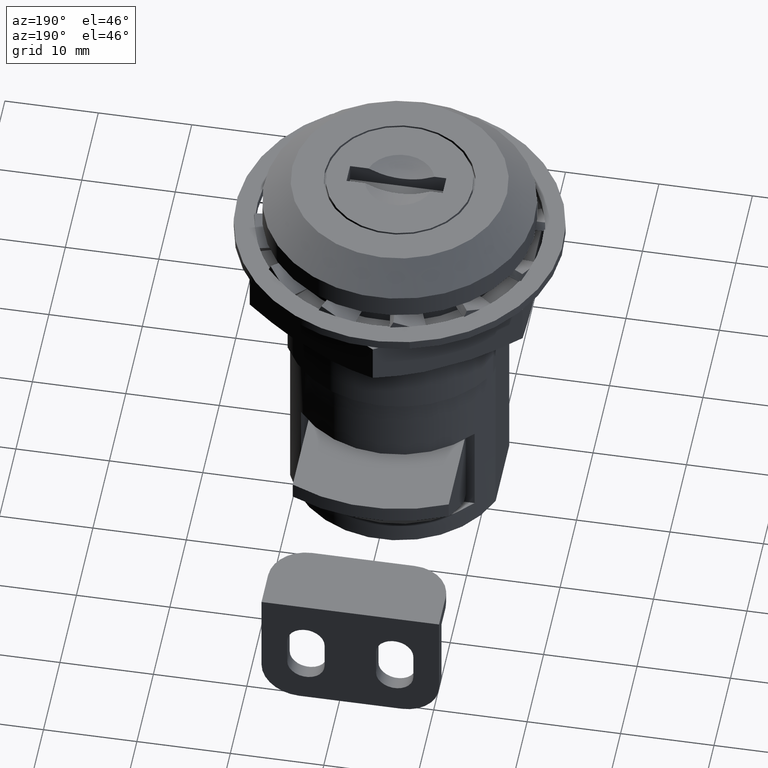
[diagram: clean part render]
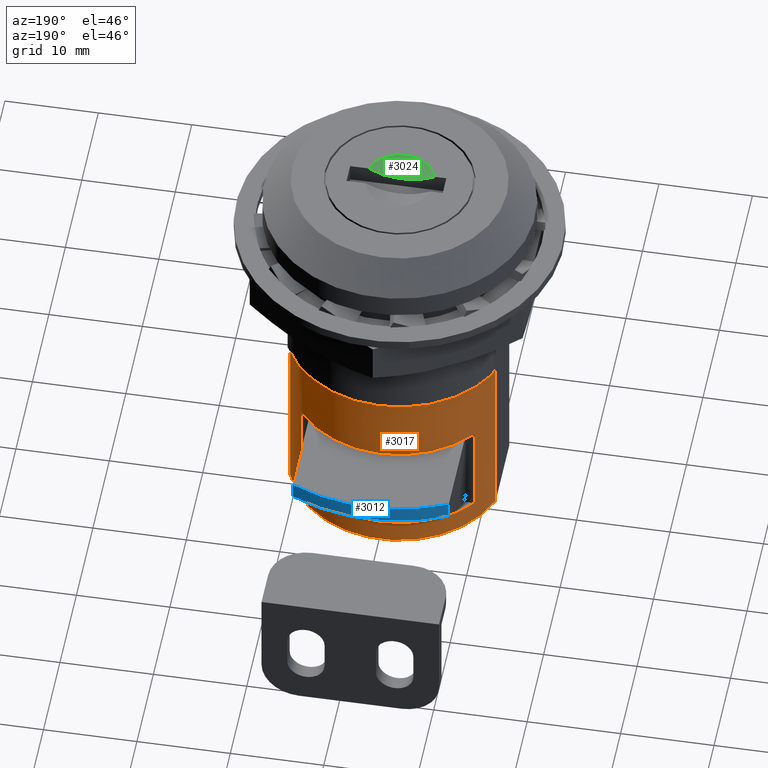
[diagram: same view with three faces highlighted in distinct colors, each labeled with its STEP entity id]
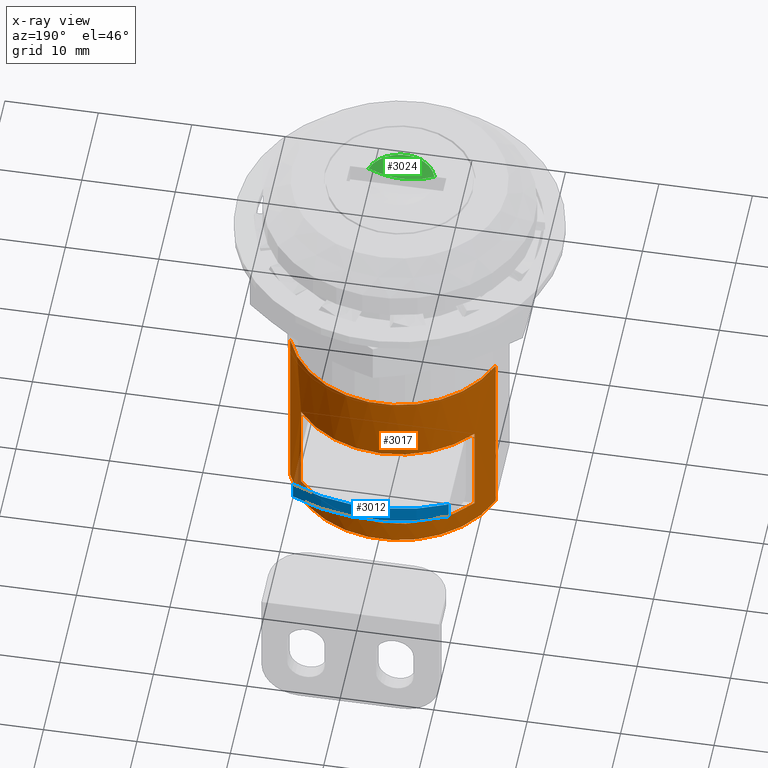
[diagram: x-ray of the same camera — body ghosted, the three highlighted faces saturated]
A machine part, auxiliary view with three faces highlighted in distinct colors.
The next image is the same camera in x-ray (body ghosted, the three faces saturated) — at least one of them is partly hidden behind the body in this view.
Their STEP definitions:

[orange] entity #3017 — the highlighted cylindrical surface (partial cylindrical patch) has radius 11.75 mm, axis along (0, 0, -1).
#169=FACE_BOUND('',#430,.T.);
#191=CYLINDRICAL_SURFACE('',#3196,11.75);
#259=FACE_OUTER_BOUND('',#429,.T.);
#429=EDGE_LOOP('',(#2061,#2062,#2063,#2064));
#430=EDGE_LOOP('',(#2065,#2066,#2067,#2068));
#613=CIRCLE('',#3193,11.75);
#614=CIRCLE('',#3195,11.75);
#615=CIRCLE('',#3197,11.75);
#616=CIRCLE('',#3198,11.75);
#696=LINE('',#4126,#984);
#698=LINE('',#4130,#986);
#700=LINE('',#4139,#988);
#701=LINE('',#4143,#989);
#984=VECTOR('',#3419,10.5);
#986=VECTOR('',#3421,10.5);
#988=VECTOR('',#3433,20.5);
#989=VECTOR('',#3436,20.5);
#1272=VERTEX_POINT('',#4124);
#1273=VERTEX_POINT('',#4125);
#1274=VERTEX_POINT('',#4127);
#1275=VERTEX_POINT('',#4129);
#1276=VERTEX_POINT('',#4137);
#1277=VERTEX_POINT('',#4138);
#1278=VERTEX_POINT('',#4140);
#1279=VERTEX_POINT('',#4142);
#1584=EDGE_CURVE('',#1272,#1273,#696,.T.);
#1586=EDGE_CURVE('',#1275,#1274,#698,.T.);
#1588=EDGE_CURVE('',#1273,#1275,#613,.T.);
#1589=EDGE_CURVE('',#1274,#1272,#614,.T.);
#1590=EDGE_CURVE('',#1276,#1277,#700,.T.);
#1591=EDGE_CURVE('',#1277,#1278,#615,.T.);
#1592=EDGE_CURVE('',#1278,#1279,#701,.T.);
#1593=EDGE_CURVE('',#1276,#1279,#616,.T.);
#2061=ORIENTED_EDGE('',*,*,#1590,.T.);
#2062=ORIENTED_EDGE('',*,*,#1591,.T.);
#2063=ORIENTED_EDGE('',*,*,#1592,.T.);
#2064=ORIENTED_EDGE('',*,*,#1593,.F.);
#2065=ORIENTED_EDGE('',*,*,#1588,.T.);
#2066=ORIENTED_EDGE('',*,*,#1586,.T.);
#2067=ORIENTED_EDGE('',*,*,#1589,.T.);
#2068=ORIENTED_EDGE('',*,*,#1584,.T.);
#3017=ADVANCED_FACE('',(#259,#169),#191,.T.);
#3193=AXIS2_PLACEMENT_3D('',#4133,#3425,#3426);
#3195=AXIS2_PLACEMENT_3D('',#4135,#3429,#3430);
#3196=AXIS2_PLACEMENT_3D('',#4136,#3431,#3432);
#3197=AXIS2_PLACEMENT_3D('',#4141,#3434,#3435);
#3198=AXIS2_PLACEMENT_3D('',#4144,#3437,#3438);
#3419=DIRECTION('',(0.,1.17553026136781E-16,-1.));
#3421=DIRECTION('',(0.,-1.17553026136781E-16,1.));
#3425=DIRECTION('center_axis',(0.,4.88010120714355E-16,-1.));
#3426=DIRECTION('ref_axis',(0.,1.,4.88010120714355E-16));
#3429=DIRECTION('center_axis',(0.,4.88010120714355E-16,1.));
#3430=DIRECTION('ref_axis',(0.,1.,-4.88010120714355E-16));
#3431=DIRECTION('center_axis',(0.,1.17553026136781E-16,-1.));
#3432=DIRECTION('ref_axis',(0.,1.,1.17553026136781E-16));
#3433=DIRECTION('',(0.,-1.17553026136781E-16,1.));
#3434=DIRECTION('center_axis',(0.,1.17553026136781E-16,-1.));
#3435=DIRECTION('ref_axis',(1.,0.,0.));
#3436=DIRECTION('',(0.,1.17553026136781E-16,-1.));
#3437=DIRECTION('center_axis',(0.,1.17553026136781E-16,-1.));
#3438=DIRECTION('ref_axis',(1.,0.,0.));
#4124=CARTESIAN_POINT('',(-9.285607142239,7.20000000000001,-29.5));
#4125=CARTESIAN_POINT('',(-9.285607142239,7.20000000000001,-40.));
#4126=CARTESIAN_POINT('',(-9.285607142239,7.20000000000001,-32.25));
#4127=CARTESIAN_POINT('',(9.285607142239,7.20000000000001,-29.5));
#4129=CARTESIAN_POINT('',(9.285607142239,7.20000000000001,-40.));
#4130=CARTESIAN_POINT('',(9.285607142239,7.20000000000001,-32.25));
#4133=CARTESIAN_POINT('Origin',(0.,4.70212104547125E-15,-40.));
#4135=CARTESIAN_POINT('Origin',(0.,3.46781427103505E-15,-29.5));
#4136=CARTESIAN_POINT('Origin',(0.,3.7910850929112E-15,-32.25));
#4137=CARTESIAN_POINT('',(-11.,4.13067791046459,-42.5));
#4138=CARTESIAN_POINT('',(-11.,4.13067791046458,-22.));
#4139=CARTESIAN_POINT('',(-11.,4.13067791046459,-32.25));
#4140=CARTESIAN_POINT('',(11.,4.13067791046458,-22.));
#4141=CARTESIAN_POINT('Origin',(0.,2.58616657500919E-15,-22.));
#4142=CARTESIAN_POINT('',(11.,4.13067791046459,-42.5));
#4143=CARTESIAN_POINT('',(11.,4.13067791046459,-32.25));
#4144=CARTESIAN_POINT('Origin',(0.,4.9960036108132E-15,-42.5));

[blue] entity #3012 — the highlighted cylindrical surface (partial cylindrical patch) has radius 19.45 mm, axis along (0, 0, -1).
#190=CYLINDRICAL_SURFACE('',#3189,19.45);
#254=FACE_OUTER_BOUND('',#423,.T.);
#423=EDGE_LOOP('',(#2041,#2042,#2043,#2044));
#610=CIRCLE('',#3183,19.45);
#611=CIRCLE('',#3187,19.45);
#691=LINE('',#4106,#979);
#693=LINE('',#4111,#981);
#979=VECTOR('',#3400,1.8);
#981=VECTOR('',#3404,1.8);
#1264=VERTEX_POINT('',#4092);
#1265=VERTEX_POINT('',#4094);
#1268=VERTEX_POINT('',#4102);
#1270=VERTEX_POINT('',#4110);
#1571=EDGE_CURVE('',#1265,#1264,#610,.T.);
#1576=EDGE_CURVE('',#1264,#1268,#691,.T.);
#1578=EDGE_CURVE('',#1270,#1265,#693,.T.);
#1581=EDGE_CURVE('',#1270,#1268,#611,.T.);
#2041=ORIENTED_EDGE('',*,*,#1578,.T.);
#2042=ORIENTED_EDGE('',*,*,#1571,.T.);
#2043=ORIENTED_EDGE('',*,*,#1576,.T.);
#2044=ORIENTED_EDGE('',*,*,#1581,.F.);
#3012=ADVANCED_FACE('',(#254),#190,.T.);
#3183=AXIS2_PLACEMENT_3D('',#4095,#3393,#3394);
#3187=AXIS2_PLACEMENT_3D('',#4118,#3408,#3409);
#3189=AXIS2_PLACEMENT_3D('',#4120,#3412,#3413);
#3393=DIRECTION('center_axis',(0.,0.,-1.));
#3394=DIRECTION('ref_axis',(-1.,-3.3620635552916E-16,0.));
#3400=DIRECTION('',(0.,0.,-1.));
#3404=DIRECTION('',(0.,0.,1.));
#3408=DIRECTION('center_axis',(0.,0.,-1.));
#3409=DIRECTION('ref_axis',(-1.,-3.3620635552916E-16,0.));
#3412=DIRECTION('center_axis',(0.,0.,-1.));
#3413=DIRECTION('ref_axis',(-1.,-2.22044604925031E-16,0.));
#4092=CARTESIAN_POINT('',(8.35,17.5664452863976,-29.8));
#4094=CARTESIAN_POINT('',(-8.35,17.5664452863976,-29.8));
#4095=CARTESIAN_POINT('Origin',(5.02596333102258E-17,2.22044604925031E-15,
-29.8));
#4102=CARTESIAN_POINT('',(8.35,17.5664452863976,-31.6));
#4106=CARTESIAN_POINT('',(8.35,17.5664452863976,-30.7));
#4110=CARTESIAN_POINT('',(-8.35,17.5664452863976,-31.6));
#4111=CARTESIAN_POINT('',(-8.35,17.5664452863976,-30.7));
#4118=CARTESIAN_POINT('Origin',(5.02596333102258E-17,2.22044604925031E-15,
-31.6));
#4120=CARTESIAN_POINT('Origin',(0.,0.,-30.7));

[green] entity #3024 — the highlighted spherical surface has radius 7.345 mm.
#166=SPHERICAL_SURFACE('',#3210,7.345);
#266=FACE_OUTER_BOUND('',#438,.T.);
#438=EDGE_LOOP('',(#2102,#2103));
#622=CIRCLE('',#3211,7.26216393370461);
#623=CIRCLE('',#3212,3.7);
#1293=VERTEX_POINT('',#4192);
#1294=VERTEX_POINT('',#4193);
#1613=EDGE_CURVE('',#1293,#1294,#622,.T.);
#1614=EDGE_CURVE('',#1294,#1293,#623,.T.);
#2102=ORIENTED_EDGE('',*,*,#1613,.F.);
#2103=ORIENTED_EDGE('',*,*,#1614,.F.);
#3024=ADVANCED_FACE('',(#266),#166,.F.);
#3210=AXIS2_PLACEMENT_3D('',#4191,#3471,#3472);
#3211=AXIS2_PLACEMENT_3D('',#4194,#3473,#3474);
#3212=AXIS2_PLACEMENT_3D('',#4195,#3475,#3476);
#3471=DIRECTION('center_axis',(1.22464679914735E-16,0.,1.));
#3472=DIRECTION('ref_axis',(1.,0.,-1.20922861769929E-16));
#3473=DIRECTION('center_axis',(-1.34735803959364E-17,-1.,-1.38777878078145E-16));
#3474=DIRECTION('ref_axis',(0.,1.38777878078145E-16,-1.));
#3475=DIRECTION('center_axis',(0.,1.17553026136781E-16,-1.));
#3476=DIRECTION('ref_axis',(0.,1.,1.17553026136781E-16));
#4191=CARTESIAN_POINT('Origin',(0.,-8.32667268468867E-16,6.345));
#4192=CARTESIAN_POINT('',(-3.53270434653114,-1.1,-1.69805348821589E-15));
#4193=CARTESIAN_POINT('',(3.53270434653114,-1.1,-1.69805348821589E-15));
#4194=CARTESIAN_POINT('Origin',(-1.482093843553E-17,-1.1,6.345));
#4195=CARTESIAN_POINT('Origin',(0.,-8.67933176309899E-17,-1.11022302462516E-15));